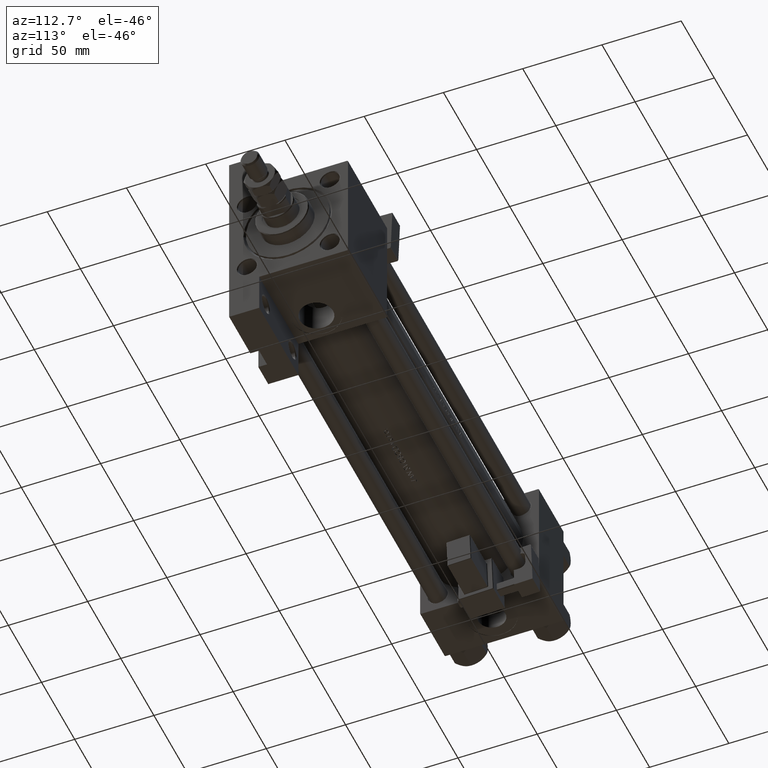
[diagram: clean part render]
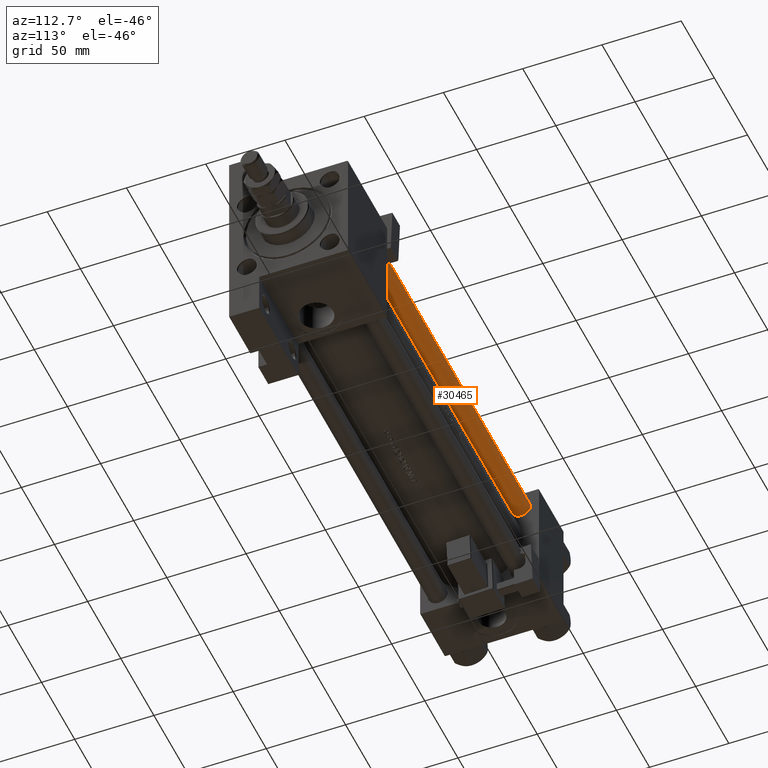
[diagram: same view with one face highlighted and labeled with its STEP entity id]
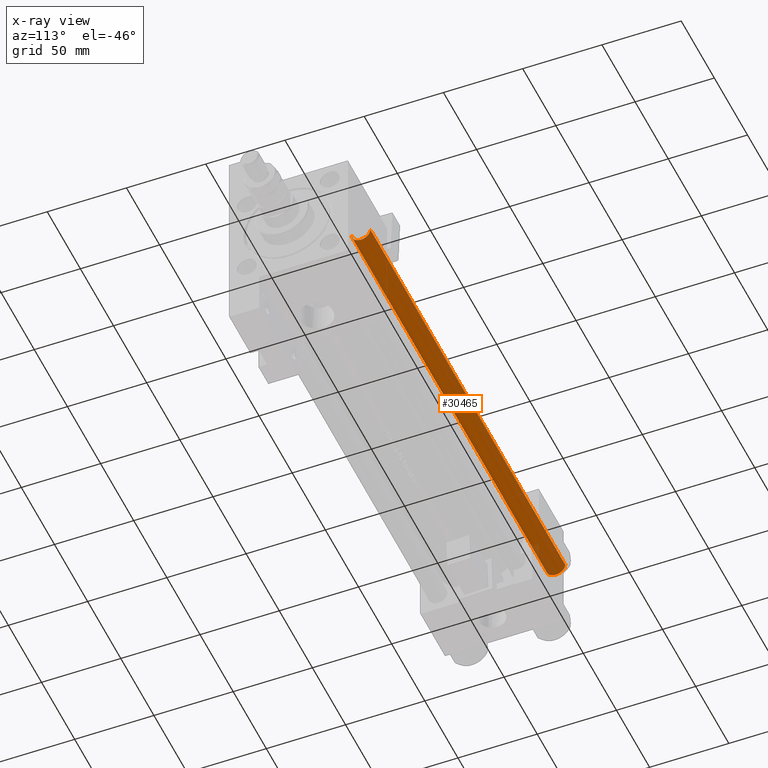
[diagram: x-ray of the same camera — body ghosted, the highlighted face saturated]
A machine part, auxiliary view. The second image highlights one B-rep face of the part: STEP entity #30465.
The next image is the same camera in x-ray: the body ghosted, the highlighted face saturated — about 7% of this face is hidden behind the body in this view.
In plain terms, the highlighted cylindrical surface (edge-blend (fillet) strip) has radius 6 mm, axis along (1, -0, 0).
Its self-contained STEP definition (entity closure, byte-faithful):
#1297 = CARTESIAN_POINT ( 'NONE',  ( -6.000000000000000888, 0.000000000000000000, 295.0000000000000000 ) ) ;
#2148 = CARTESIAN_POINT ( 'NONE',  ( 0.000000000000000000, 0.000000000000000000, 295.0000000000000000 ) ) ;
#6401 = ORIENTED_EDGE ( 'NONE', *, *, #30122, .T. ) ;
#7695 = AXIS2_PLACEMENT_3D ( 'NONE', #42736, #22477, #42227 ) ;
#8205 = LINE ( 'NONE', #50838, #44269 ) ;
#10707 = FACE_OUTER_BOUND ( 'NONE', #43567, .T. ) ;
#12360 = CARTESIAN_POINT ( 'NONE',  ( -6.000000000000000888, 0.000000000000000000, 0.5000000000001114664 ) ) ;
#14123 = DIRECTION ( 'NONE',  ( -1.000000000000000000, 0.000000000000000000, 0.000000000000000000 ) ) ;
#17415 = LINE ( 'NONE', #1297, #34740 ) ;
#18773 = DIRECTION ( 'NONE',  ( -0.000000000000000000, -0.000000000000000000, -1.000000000000000000 ) ) ;
#19534 = CARTESIAN_POINT ( 'NONE',  ( -6.000000000000000888, 0.000000000000000000, 294.5000000000000568 ) ) ;
#20541 = DIRECTION ( 'NONE',  ( -0.000000000000000000, -0.000000000000000000, -1.000000000000000000 ) ) ;
#22447 = ORIENTED_EDGE ( 'NONE', *, *, #29705, .T. ) ;
#22477 = DIRECTION ( 'NONE',  ( -0.000000000000000000, -0.000000000000000000, 1.000000000000000000 ) ) ;
#23473 = AXIS2_PLACEMENT_3D ( 'NONE', #25142, #33729, #40747 ) ;
#25142 = CARTESIAN_POINT ( 'NONE',  ( 0.000000000000000000, 0.000000000000000000, 294.5000000000000568 ) ) ;
#28707 = CARTESIAN_POINT ( 'NONE',  ( 6.000000000000000888, 7.347880794884120722E-16, 294.5000000000000568 ) ) ;
#29705 = EDGE_CURVE ( 'NONE', #40807, #35524, #39241, .T. ) ;
#30122 = EDGE_CURVE ( 'NONE', #30779, #40585, #30926, .T. ) ;
#30465 = ADVANCED_FACE ( 'NONE', ( #10707 ), #45555, .T. ) ;
#30651 = ORIENTED_EDGE ( 'NONE', *, *, #32079, .T. ) ;
#30779 = VERTEX_POINT ( 'NONE', #38983 ) ;
#30926 = CIRCLE ( 'NONE', #7695, 6.000000000000000888 ) ;
#32079 = EDGE_CURVE ( 'NONE', #35524, #30779, #8205, .T. ) ;
#33729 = DIRECTION ( 'NONE',  ( 0.000000000000000000, 0.000000000000000000, -1.000000000000000000 ) ) ;
#34740 = VECTOR ( 'NONE', #20541, 1000.000000000000000 ) ;
#35088 = AXIS2_PLACEMENT_3D ( 'NONE', #2148, #18773, #14123 ) ;
#35524 = VERTEX_POINT ( 'NONE', #28707 ) ;
#38983 = CARTESIAN_POINT ( 'NONE',  ( 6.000000000000000888, 7.347880794884120722E-16, 0.5000000000001114664 ) ) ;
#39241 = CIRCLE ( 'NONE', #23473, 6.000000000000000888 ) ;
#40585 = VERTEX_POINT ( 'NONE', #12360 ) ;
#40747 = DIRECTION ( 'NONE',  ( 1.000000000000000000, 0.000000000000000000, 0.000000000000000000 ) ) ;
#40807 = VERTEX_POINT ( 'NONE', #19534 ) ;
#42227 = DIRECTION ( 'NONE',  ( 1.000000000000000000, 0.000000000000000000, 0.000000000000000000 ) ) ;
#42736 = CARTESIAN_POINT ( 'NONE',  ( 0.000000000000000000, 0.000000000000000000, 0.5000000000001114664 ) ) ;
#43567 = EDGE_LOOP ( 'NONE', ( #22447, #30651, #6401, #43907 ) ) ;
#43907 = ORIENTED_EDGE ( 'NONE', *, *, #48822, .F. ) ;
#44269 = VECTOR ( 'NONE', #47470, 1000.000000000000000 ) ;
#45555 = CYLINDRICAL_SURFACE ( 'NONE', #35088, 6.000000000000000888 ) ;
#47470 = DIRECTION ( 'NONE',  ( -0.000000000000000000, -0.000000000000000000, -1.000000000000000000 ) ) ;
#48822 = EDGE_CURVE ( 'NONE', #40807, #40585, #17415, .T. ) ;
#50838 = CARTESIAN_POINT ( 'NONE',  ( 6.000000000000000888, 7.347880794884120722E-16, 295.0000000000000000 ) ) ;